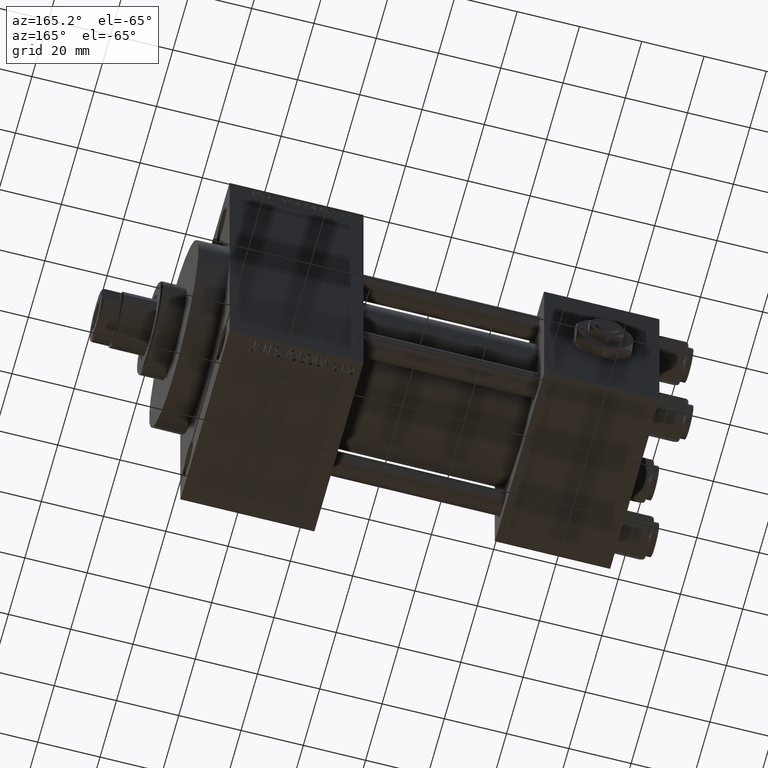
[diagram: clean part render]
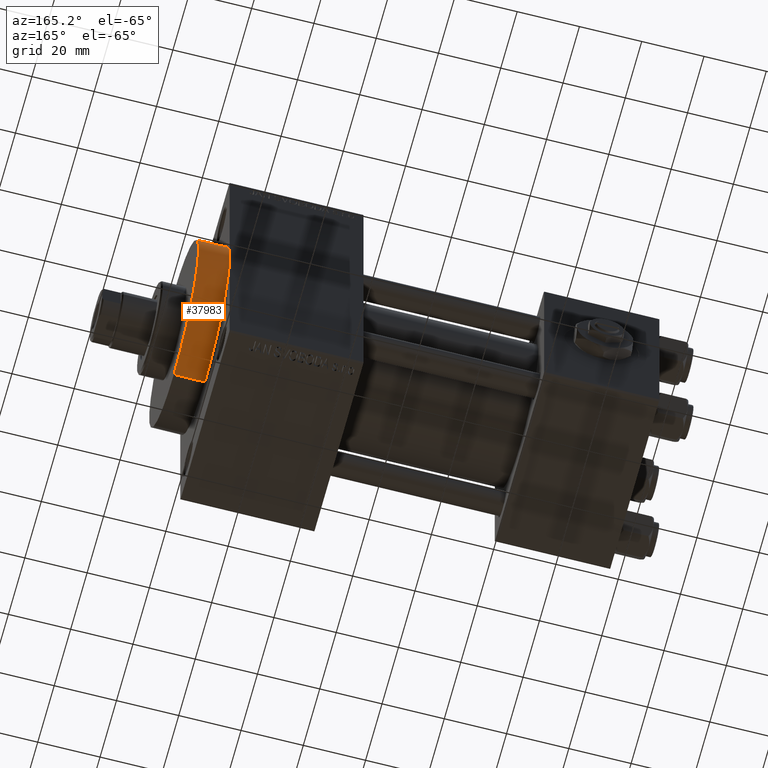
[diagram: same view with one face highlighted and labeled with its STEP entity id]
A machine part, auxiliary view. The second image highlights one B-rep face of the part: STEP entity #37983.
In plain terms, the highlighted cylindrical surface (partial cylindrical patch) has radius 30 mm, axis along (-1, -0, -0).
Its self-contained STEP definition (entity closure, byte-faithful):
#2108 = DIRECTION ( 'NONE',  ( 0.000000000000000000, 0.000000000000000000, -1.000000000000000000 ) ) ;
#3525 = CARTESIAN_POINT ( 'NONE',  ( 148.0000000000000284, 0.000000000000000000, 30.00000000000000000 ) ) ;
#4017 = EDGE_CURVE ( 'NONE', #7906, #31070, #11960, .T. ) ;
#7292 = ORIENTED_EDGE ( 'NONE', *, *, #22392, .T. ) ;
#7906 = VERTEX_POINT ( 'NONE', #3525 ) ;
#9041 = CARTESIAN_POINT ( 'NONE',  ( 148.0000000000000284, 3.673940397442059178E-15, -30.00000000000000000 ) ) ;
#9613 = CARTESIAN_POINT ( 'NONE',  ( 138.0000000000000000, 3.673940397442059178E-15, -30.00000000000000000 ) ) ;
#9850 = AXIS2_PLACEMENT_3D ( 'NONE', #23518, #33636, #41742 ) ;
#9980 = DIRECTION ( 'NONE',  ( 0.000000000000000000, 0.000000000000000000, -1.000000000000000000 ) ) ;
#10107 = VECTOR ( 'NONE', #42258, 1000.000000000000000 ) ;
#11960 = LINE ( 'NONE', #45951, #10107 ) ;
#12869 = FACE_OUTER_BOUND ( 'NONE', #41036, .T. ) ;
#16158 = CIRCLE ( 'NONE', #9850, 30.00000000000000000 ) ;
#17072 = CIRCLE ( 'NONE', #41439, 30.00000000000000000 ) ;
#19182 = AXIS2_PLACEMENT_3D ( 'NONE', #45891, #42204, #27663 ) ;
#20636 = CARTESIAN_POINT ( 'NONE',  ( 138.0000000000000000, 30.00000000000000000, 0.000000000000000000 ) ) ;
#22392 = EDGE_CURVE ( 'NONE', #39107, #29060, #24320, .T. ) ;
#23518 = CARTESIAN_POINT ( 'NONE',  ( 138.0000000000000000, 0.000000000000000000, 0.000000000000000000 ) ) ;
#24320 = LINE ( 'NONE', #9041, #26487 ) ;
#26487 = VECTOR ( 'NONE', #45337, 1000.000000000000000 ) ;
#27663 = DIRECTION ( 'NONE',  ( 0.000000000000000000, 0.000000000000000000, 1.000000000000000000 ) ) ;
#28657 = EDGE_CURVE ( 'NONE', #39107, #7906, #17072, .T. ) ;
#28753 = ORIENTED_EDGE ( 'NONE', *, *, #38340, .T. ) ;
#29060 = VERTEX_POINT ( 'NONE', #9613 ) ;
#29207 = DIRECTION ( 'NONE',  ( 1.000000000000000000, 0.000000000000000000, 0.000000000000000000 ) ) ;
#31070 = VERTEX_POINT ( 'NONE', #42426 ) ;
#31479 = ORIENTED_EDGE ( 'NONE', *, *, #4017, .F. ) ;
#32210 = ORIENTED_EDGE ( 'NONE', *, *, #45623, .T. ) ;
#33636 = DIRECTION ( 'NONE',  ( 1.000000000000000000, 0.000000000000000000, 0.000000000000000000 ) ) ;
#33948 = ORIENTED_EDGE ( 'NONE', *, *, #28657, .F. ) ;
#35846 = DIRECTION ( 'NONE',  ( 1.000000000000000000, 0.000000000000000000, 0.000000000000000000 ) ) ;
#36519 = AXIS2_PLACEMENT_3D ( 'NONE', #47927, #29207, #9980 ) ;
#37983 = ADVANCED_FACE ( 'NONE', ( #12869 ), #39222, .T. ) ;
#38340 = EDGE_CURVE ( 'NONE', #29060, #42944, #38868, .T. ) ;
#38868 = CIRCLE ( 'NONE', #36519, 30.00000000000000000 ) ;
#39107 = VERTEX_POINT ( 'NONE', #41563 ) ;
#39222 = CYLINDRICAL_SURFACE ( 'NONE', #19182, 30.00000000000000000 ) ;
#40248 = CARTESIAN_POINT ( 'NONE',  ( 148.0000000000000284, 0.000000000000000000, 0.000000000000000000 ) ) ;
#41036 = EDGE_LOOP ( 'NONE', ( #33948, #7292, #28753, #32210, #31479 ) ) ;
#41439 = AXIS2_PLACEMENT_3D ( 'NONE', #40248, #35846, #2108 ) ;
#41563 = CARTESIAN_POINT ( 'NONE',  ( 148.0000000000000284, 3.673940397442059178E-15, -30.00000000000000000 ) ) ;
#41742 = DIRECTION ( 'NONE',  ( 0.000000000000000000, 0.000000000000000000, -1.000000000000000000 ) ) ;
#42204 = DIRECTION ( 'NONE',  ( -1.000000000000000000, -0.000000000000000000, -0.000000000000000000 ) ) ;
#42258 = DIRECTION ( 'NONE',  ( -1.000000000000000000, -0.000000000000000000, -0.000000000000000000 ) ) ;
#42426 = CARTESIAN_POINT ( 'NONE',  ( 138.0000000000000000, 0.000000000000000000, 30.00000000000000000 ) ) ;
#42944 = VERTEX_POINT ( 'NONE', #20636 ) ;
#45337 = DIRECTION ( 'NONE',  ( -1.000000000000000000, -0.000000000000000000, -0.000000000000000000 ) ) ;
#45623 = EDGE_CURVE ( 'NONE', #42944, #31070, #16158, .T. ) ;
#45891 = CARTESIAN_POINT ( 'NONE',  ( 148.0000000000000284, 0.000000000000000000, 0.000000000000000000 ) ) ;
#45951 = CARTESIAN_POINT ( 'NONE',  ( 148.0000000000000284, 0.000000000000000000, 30.00000000000000000 ) ) ;
#47927 = CARTESIAN_POINT ( 'NONE',  ( 138.0000000000000000, 0.000000000000000000, 0.000000000000000000 ) ) ;